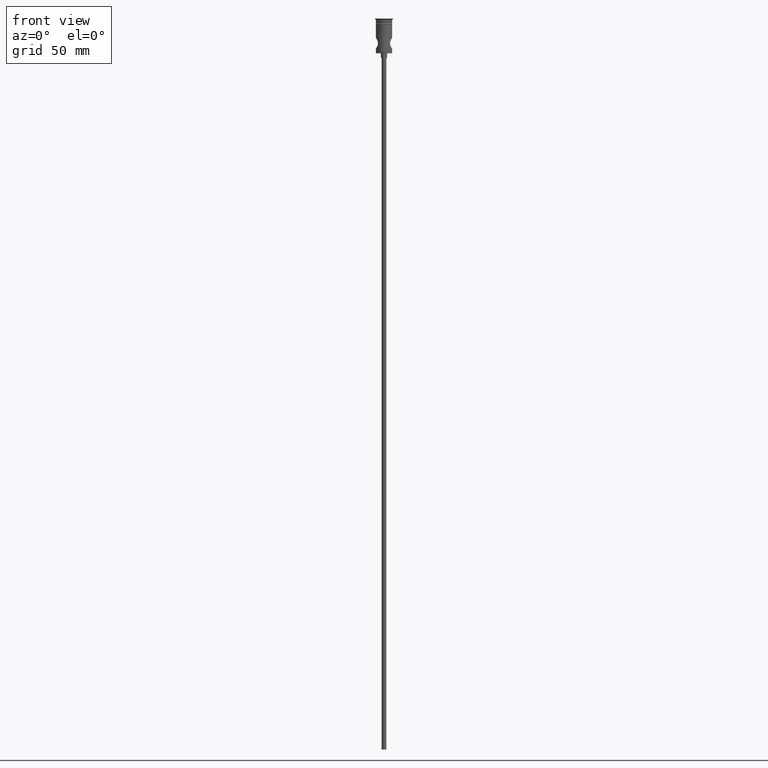
[diagram: clean part render]
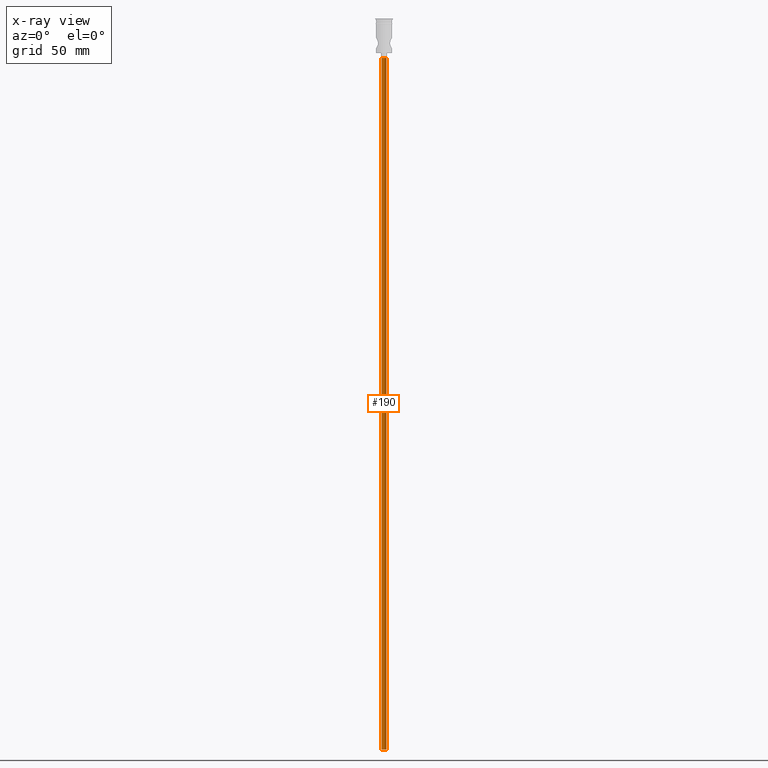
[diagram: x-ray — body ghosted, one internal face saturated and labeled with its STEP entity id]
A machine part, front view, then the same camera in x-ray: the body is ghosted and one INTERNAL B-rep face — a face not visible from any outside direction — is saturated and labeled: STEP entity #190.
In plain terms, the highlighted cylindrical surface (edge-blend (fillet) strip) has radius 1.5 mm, axis along (-0, -0, 1).
Its self-contained STEP definition (entity closure, byte-faithful):
#63 = DIRECTION ( 'NONE',  ( 0.000000000000000000, 0.000000000000000000, -1.000000000000000000 ) ) ;
#104 = AXIS2_PLACEMENT_3D ( 'NONE', #1386, #63, #1400 ) ;
#136 = CARTESIAN_POINT ( 'NONE',  ( -1.500000000000000222, 1.836970198721030181E-16, -472.5000000000000568 ) ) ;
#190 = ADVANCED_FACE ( 'NONE', ( #1387 ), #283, .T. ) ;
#238 = CIRCLE ( 'NONE', #104, 1.500000000000000222 ) ;
#241 = EDGE_CURVE ( 'NONE', #1105, #1303, #1346, .T. ) ;
#283 = CYLINDRICAL_SURFACE ( 'NONE', #834, 1.500000000000000222 ) ;
#295 = EDGE_CURVE ( 'NONE', #1105, #1218, #511, .T. ) ;
#407 = CARTESIAN_POINT ( 'NONE',  ( 0.000000000000000000, 0.000000000000000000, -472.5000000000000568 ) ) ;
#506 = DIRECTION ( 'NONE',  ( -0.000000000000000000, -0.000000000000000000, 1.000000000000000000 ) ) ;
#511 = CIRCLE ( 'NONE', #710, 1.500000000000000222 ) ;
#546 = CARTESIAN_POINT ( 'NONE',  ( 1.500000000000000222, 0.000000000000000000, -472.5000000000000568 ) ) ;
#586 = VERTEX_POINT ( 'NONE', #941 ) ;
#618 = VECTOR ( 'NONE', #1001, 1000.000000000000000 ) ;
#698 = CARTESIAN_POINT ( 'NONE',  ( 1.500000000000000222, 0.000000000000000000, -472.5000000000000568 ) ) ;
#710 = AXIS2_PLACEMENT_3D ( 'NONE', #407, #1070, #1187 ) ;
#727 = ORIENTED_EDGE ( 'NONE', *, *, #241, .T. ) ;
#767 = LINE ( 'NONE', #546, #618 ) ;
#834 = AXIS2_PLACEMENT_3D ( 'NONE', #1077, #506, #968 ) ;
#859 = EDGE_LOOP ( 'NONE', ( #1327, #727, #1413, #1141 ) ) ;
#880 = CARTESIAN_POINT ( 'NONE',  ( -1.500000000000000222, 1.836970198721030181E-16, -472.5000000000000568 ) ) ;
#890 = EDGE_CURVE ( 'NONE', #1303, #586, #238, .T. ) ;
#941 = CARTESIAN_POINT ( 'NONE',  ( 1.500000000000000222, 0.000000000000000000, -25.50000000000000000 ) ) ;
#968 = DIRECTION ( 'NONE',  ( 1.000000000000000000, 0.000000000000000000, 0.000000000000000000 ) ) ;
#1001 = DIRECTION ( 'NONE',  ( -0.000000000000000000, -0.000000000000000000, 1.000000000000000000 ) ) ;
#1035 = VECTOR ( 'NONE', #1262, 1000.000000000000000 ) ;
#1070 = DIRECTION ( 'NONE',  ( 0.000000000000000000, 0.000000000000000000, -1.000000000000000000 ) ) ;
#1077 = CARTESIAN_POINT ( 'NONE',  ( 0.000000000000000000, 0.000000000000000000, -472.5000000000000568 ) ) ;
#1105 = VERTEX_POINT ( 'NONE', #880 ) ;
#1141 = ORIENTED_EDGE ( 'NONE', *, *, #1401, .F. ) ;
#1187 = DIRECTION ( 'NONE',  ( -1.000000000000000000, 0.000000000000000000, 0.000000000000000000 ) ) ;
#1218 = VERTEX_POINT ( 'NONE', #698 ) ;
#1262 = DIRECTION ( 'NONE',  ( -0.000000000000000000, -0.000000000000000000, 1.000000000000000000 ) ) ;
#1303 = VERTEX_POINT ( 'NONE', #1329 ) ;
#1327 = ORIENTED_EDGE ( 'NONE', *, *, #295, .F. ) ;
#1329 = CARTESIAN_POINT ( 'NONE',  ( -1.500000000000000222, 1.836970198721030181E-16, -25.50000000000000000 ) ) ;
#1346 = LINE ( 'NONE', #136, #1035 ) ;
#1386 = CARTESIAN_POINT ( 'NONE',  ( 0.000000000000000000, 0.000000000000000000, -25.50000000000000000 ) ) ;
#1387 = FACE_OUTER_BOUND ( 'NONE', #859, .T. ) ;
#1400 = DIRECTION ( 'NONE',  ( -1.000000000000000000, 0.000000000000000000, 0.000000000000000000 ) ) ;
#1401 = EDGE_CURVE ( 'NONE', #1218, #586, #767, .T. ) ;
#1413 = ORIENTED_EDGE ( 'NONE', *, *, #890, .T. ) ;